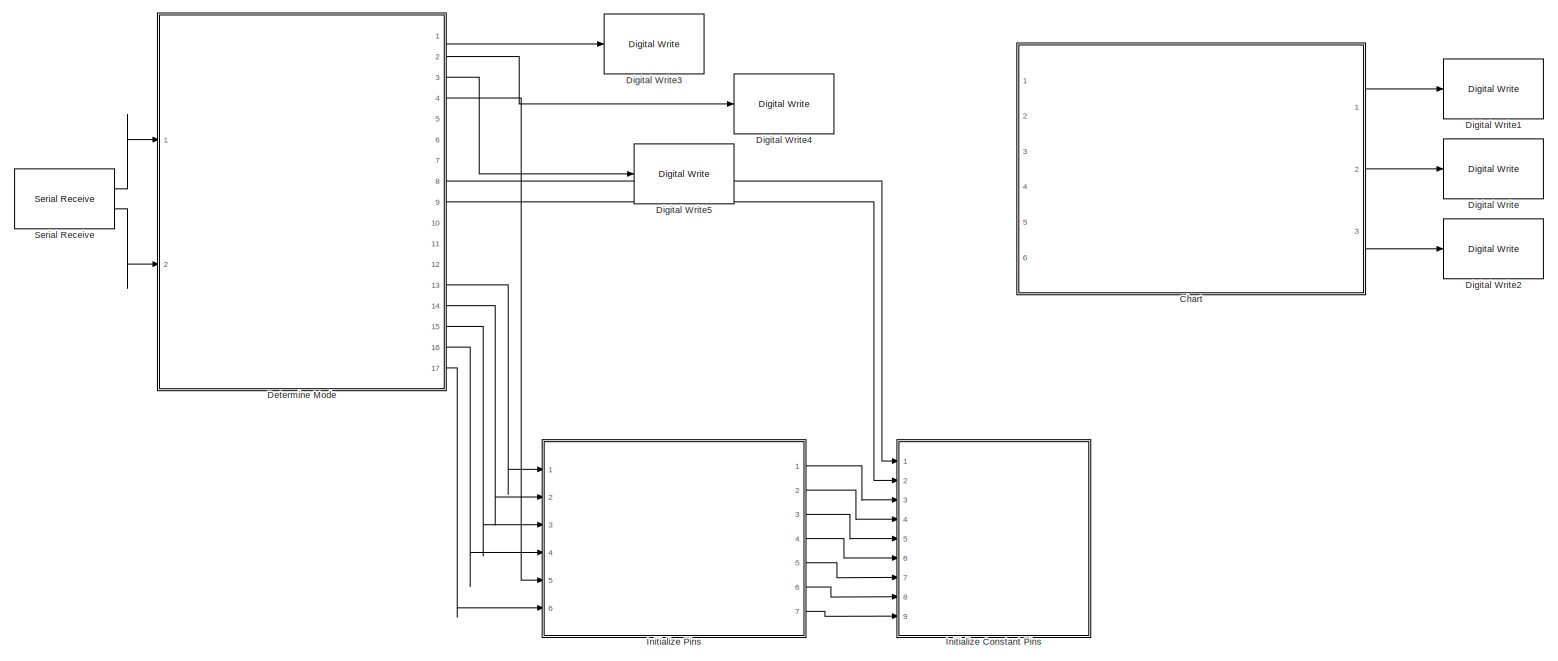
[diagram: root canvas - part 1/1, most of the canvas]
MODEL slx_1539811f4e7c
KIND model
CONFIG AbsTol = auto
CONFIG EnableMultiTasking = on
CONFIG FixedStep = 1e-3
CONFIG MaxStep = auto
CONFIG MinStep = auto
CONFIG RelTol = 1e-3
CONFIG SampleTimeConstraint = Unconstrained
CONFIG SolverName = FixedStepAuto
CONFIG StartTime = 0.0
CONFIG StopTime = 100.0
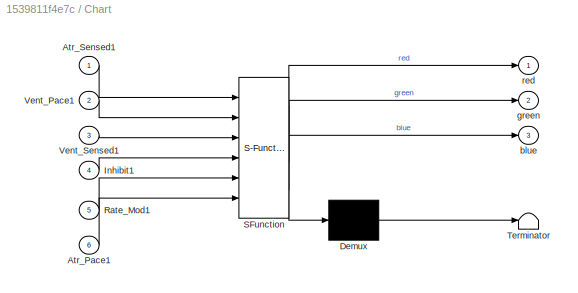
BLOCK [SubSystem] Chart
  Commented = on
  ErrorFcn = Stateflow.Translate.translate
  PermitHierarchicalResolution = ExplicitOnly
  PortSchema = {"entries":[{"content":{"sides":[{"content":{"connectorIds":["In3","In2","In1","In4","In5","In6"]},"type":"ConnectorPlacement.EquallySpacedRectSide","uuid":"0e4b22a6-a47f-4214-b9ef-749a080df669"},{"content":{"connectorIds":["Out1","Out2","Out3"],"side":"RIGHT"},"type":"ConnectorPlacement.EquallySpacedRectSide","uuid":"0adee417-9e0f-4a8f-be57-ef0b3565890b"},{"content":{"connectorIds":[],"side":"TOP...<+284ch>
  Ports = [6, 3]
  RequestExecContextInheritance = off
  SFBlockType = Chart
  TreatAsAtomicUnit = on
BLOCK [Demux] Chart/ Demux 
  Outputs = 1
  Ports = [1, 1]
BLOCK [S-Function] Chart/ SFunction 
  EnableBusSupport = on
  FunctionName = sf_sfun
  PortCounts = [6 4]
  Ports = [6, 4]
  SFcnIsStateOwnerBlock = off
  SFunctionDeploymentMode = off
  Tag = Stateflow S-Function 2
BLOCK [Terminator] Chart/ Terminator 
BLOCK [Inport] Chart/Atr_Pace1
  Port = 6
BLOCK [Inport] Chart/Atr_Sensed1
BLOCK [Inport] Chart/Inhibit1
  Port = 4
BLOCK [Inport] Chart/Rate_Mod1
  Port = 5
BLOCK [Inport] Chart/Vent_Pace1
  Port = 2
BLOCK [Inport] Chart/Vent_Sensed1
  Port = 3
BLOCK [Outport] Chart/blue
  Port = 3
BLOCK [Outport] Chart/green
  Port = 2
BLOCK [Outport] Chart/red
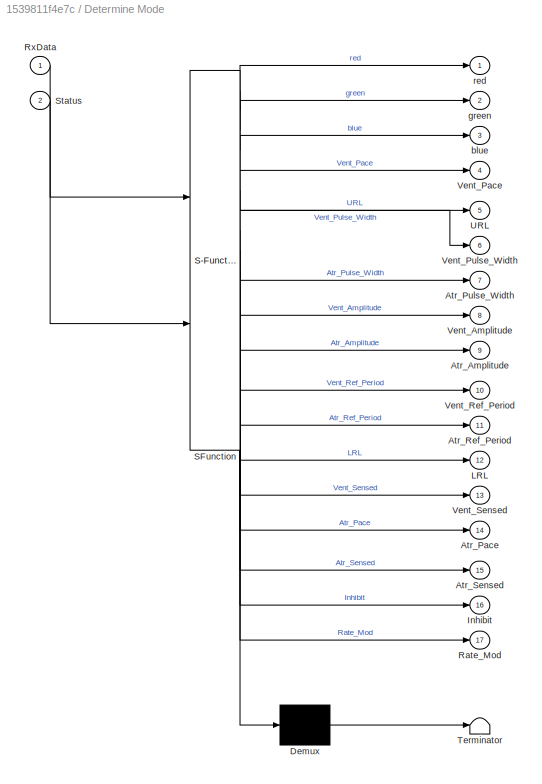
BLOCK [SubSystem] Determine Mode
  ErrorFcn = Stateflow.Translate.translate
  PermitHierarchicalResolution = ExplicitOnly
  PortSchema = {"entries":[{"content":{"sides":[{"content":{"connectorIds":["In1","In2"]},"type":"ConnectorPlacement.EquallySpacedRectSide","uuid":"d3a0267d-6aa2-456b-a992-b2b3c1e06367"},{"content":{"connectorIds":["Out1","Out2","Out3","Out12","Out5","Out6","Out7","Out10","Out11","Out8","Out9","Out4","Out13","Out14","Out15","Out16","Out17"],"side":"RIGHT"},"type":"ConnectorPlacement.EquallySpacedRectSide","uuid"...<+366ch>
  Ports = [2, 17]
  RequestExecContextInheritance = off
  SFBlockType = Chart
  TreatAsAtomicUnit = on
BLOCK [Demux] Determine Mode/ Demux 
  Outputs = 1
  Ports = [1, 1]
BLOCK [S-Function] Determine Mode/ SFunction 
  EnableBusSupport = on
  FunctionName = sf_sfun
  PortCounts = [2 18]
  Ports = [2, 18]
  SFcnIsStateOwnerBlock = off
  SFunctionDeploymentMode = off
  Tag = Stateflow S-Function 3
BLOCK [Terminator] Determine Mode/ Terminator 
BLOCK [Outport] Determine Mode/Atr_Amplitude
  Port = 9
BLOCK [Outport] Determine Mode/Atr_Pace
  Port = 14
BLOCK [Outport] Determine Mode/Atr_Pulse_Width
  Port = 7
BLOCK [Outport] Determine Mode/Atr_Ref_Period
  Port = 11
BLOCK [Outport] Determine Mode/Atr_Sensed
  Port = 15
BLOCK [Outport] Determine Mode/Inhibit
  Port = 16
BLOCK [Outport] Determine Mode/LRL
  Port = 12
BLOCK [Outport] Determine Mode/Rate_Mod
  Port = 17
BLOCK [Inport] Determine Mode/RxData
BLOCK [Inport] Determine Mode/Status
  Port = 2
BLOCK [Outport] Determine Mode/URL
  Port = 5
BLOCK [Outport] Determine Mode/Vent_Amplitude
  Port = 8
BLOCK [Outport] Determine Mode/Vent_Pace
  Port = 4
BLOCK [Outport] Determine Mode/Vent_Pulse_Width
  Port = 6
BLOCK [Outport] Determine Mode/Vent_Ref_Period
  Port = 10
BLOCK [Outport] Determine Mode/Vent_Sensed
  Port = 13
BLOCK [Outport] Determine Mode/blue
  Port = 3
BLOCK [Outport] Determine Mode/green
  Port = 2
BLOCK [Outport] Determine Mode/red
BLOCK [Reference] Digital Write  REF=frdmk64flib/Digital Write
  Commented = on
  Ports = [1]
  SourceBlock = frdmk64flib/Digital Write
  SourceProductBaseCode = EC_FRDM_K64F
  SourceType = freedomk64f.DigitalWrite
BLOCK [Reference] Digital Write1  REF=frdmk64flib/Digital Write
  Commented = on
  Ports = [1]
  SourceBlock = frdmk64flib/Digital Write
  SourceProductBaseCode = EC_FRDM_K64F
  SourceType = freedomk64f.DigitalWrite
BLOCK [Reference] Digital Write2  REF=frdmk64flib/Digital Write
  Commented = on
  Ports = [1]
  SourceBlock = frdmk64flib/Digital Write
  SourceProductBaseCode = EC_FRDM_K64F
  SourceType = freedomk64f.DigitalWrite
BLOCK [Reference] Digital Write3  REF=frdmk64flib/Digital Write
  Ports = [1]
  SourceBlock = frdmk64flib/Digital Write
  SourceProductBaseCode = EC_FRDM_K64F
  SourceType = freedomk64f.DigitalWrite
BLOCK [Reference] Digital Write4  REF=frdmk64flib/Digital Write
  Ports = [1]
  SourceBlock = frdmk64flib/Digital Write
  SourceProductBaseCode = EC_FRDM_K64F
  SourceType = freedomk64f.DigitalWrite
BLOCK [Reference] Digital Write5  REF=frdmk64flib/Digital Write
  Ports = [1]
  SourceBlock = frdmk64flib/Digital Write
  SourceProductBaseCode = EC_FRDM_K64F
  SourceType = freedomk64f.DigitalWrite
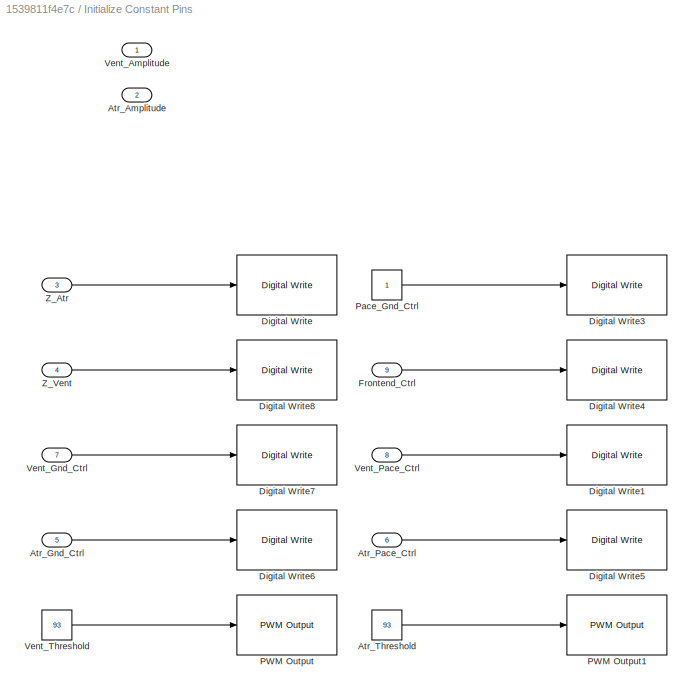
BLOCK [SubSystem] Initialize Constant Pins
  Ports = [9]
  RequestExecContextInheritance = off
BLOCK [Inport] Initialize Constant Pins/Atr_Amplitude
  Port = 2
BLOCK [Inport] Initialize Constant Pins/Atr_Gnd_Ctrl
  Port = 5
BLOCK [Inport] Initialize Constant Pins/Atr_Pace_Ctrl
  Port = 6
BLOCK [Constant] Initialize Constant Pins/Atr_Threshold
  OutDataTypeStr = int8
  Value = 93
BLOCK [Reference] Initialize Constant Pins/Digital Write  REF=frdmk64flib/Digital Write
  Ports = [1]
  SourceBlock = frdmk64flib/Digital Write
  SourceProductBaseCode = EC_FRDM_K64F
  SourceType = freedomk64f.DigitalWrite
BLOCK [Reference] Initialize Constant Pins/Digital Write1  REF=frdmk64flib/Digital Write
  Ports = [1]
  SourceBlock = frdmk64flib/Digital Write
  SourceProductBaseCode = EC_FRDM_K64F
  SourceType = freedomk64f.DigitalWrite
BLOCK [Reference] Initialize Constant Pins/Digital Write3  REF=frdmk64flib/Digital Write
  Ports = [1]
  SourceBlock = frdmk64flib/Digital Write
  SourceProductBaseCode = EC_FRDM_K64F
  SourceType = freedomk64f.DigitalWrite
BLOCK [Reference] Initialize Constant Pins/Digital Write4  REF=frdmk64flib/Digital Write
  Ports = [1]
  SourceBlock = frdmk64flib/Digital Write
  SourceProductBaseCode = EC_FRDM_K64F
  SourceType = freedomk64f.DigitalWrite
BLOCK [Reference] Initialize Constant Pins/Digital Write5  REF=frdmk64flib/Digital Write
  Ports = [1]
  SourceBlock = frdmk64flib/Digital Write
  SourceProductBaseCode = EC_FRDM_K64F
  SourceType = freedomk64f.DigitalWrite
BLOCK [Reference] Initialize Constant Pins/Digital Write6  REF=frdmk64flib/Digital Write
  Ports = [1]
  SourceBlock = frdmk64flib/Digital Write
  SourceProductBaseCode = EC_FRDM_K64F
  SourceType = freedomk64f.DigitalWrite
BLOCK [Reference] Initialize Constant Pins/Digital Write7  REF=frdmk64flib/Digital Write
  Ports = [1]
  SourceBlock = frdmk64flib/Digital Write
  SourceProductBaseCode = EC_FRDM_K64F
  SourceType = freedomk64f.DigitalWrite
BLOCK [Reference] Initialize Constant Pins/Digital Write8  REF=frdmk64flib/Digital Write
  Ports = [1]
  SourceBlock = frdmk64flib/Digital Write
  SourceProductBaseCode = EC_FRDM_K64F
  SourceType = freedomk64f.DigitalWrite
BLOCK [Inport] Initialize Constant Pins/Frontend_Ctrl
  Port = 9
BLOCK [Reference] Initialize Constant Pins/PWM Output  REF=frdmk64flib/PWM Output
  Ports = [1]
  SourceBlock = frdmk64flib/PWM Output
  SourceProductBaseCode = EC_FRDM_K64F
  SourceType = freedomk64f.PWMOutput
BLOCK [Reference] Initialize Constant Pins/PWM Output1  REF=frdmk64flib/PWM Output
  Ports = [1]
  SourceBlock = frdmk64flib/PWM Output
  SourceProductBaseCode = EC_FRDM_K64F
  SourceType = freedomk64f.PWMOutput
BLOCK [Constant] Initialize Constant Pins/Pace_Gnd_Ctrl
  SampleTime = -1
BLOCK [Inport] Initialize Constant Pins/Vent_Amplitude
BLOCK [Inport] Initialize Constant Pins/Vent_Gnd_Ctrl
  Port = 7
BLOCK [Inport] Initialize Constant Pins/Vent_Pace_Ctrl
  Port = 8
BLOCK [Constant] Initialize Constant Pins/Vent_Threshold
  OutDataTypeStr = int8
  Value = 93
BLOCK [Inport] Initialize Constant Pins/Z_Atr
  Port = 3
BLOCK [Inport] Initialize Constant Pins/Z_Vent
  Port = 4
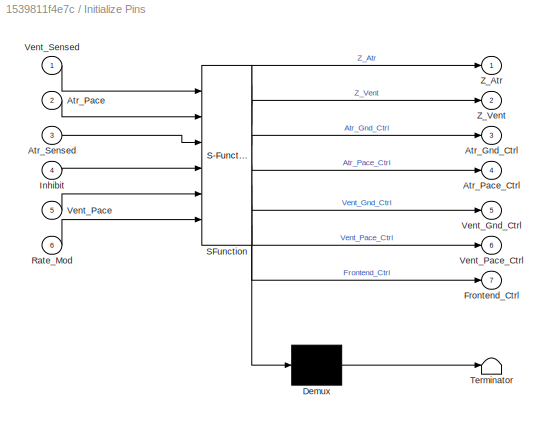
BLOCK [SubSystem] Initialize Pins
  ErrorFcn = Stateflow.Translate.translate
  PermitHierarchicalResolution = ExplicitOnly
  PortSchema = {"entries":[{"content":{"sides":[{"content":{"connectorIds":["In5","In1","In2","In3","In4","In6"]},"type":"ConnectorPlacement.EquallySpacedRectSide","uuid":"c51a1d0e-b06b-442a-95c0-1a3d5253c08f"},{"content":{"connectorIds":["Out1","Out2","Out3","Out4","Out5","Out6","Out7"],"side":"RIGHT"},"type":"ConnectorPlacement.EquallySpacedRectSide","uuid":"41317748-07b9-4449-a7f8-cbb7fdf91266"},{"content":{"...<+312ch>
  Ports = [6, 7]
  RequestExecContextInheritance = off
  SFBlockType = Chart
  TreatAsAtomicUnit = on
BLOCK [Demux] Initialize Pins/ Demux 
  Outputs = 1
  Ports = [1, 1]
BLOCK [S-Function] Initialize Pins/ SFunction 
  EnableBusSupport = on
  FunctionName = sf_sfun
  PortCounts = [6 8]
  Ports = [6, 8]
  SFcnIsStateOwnerBlock = off
  SFunctionDeploymentMode = off
  Tag = Stateflow S-Function 1
BLOCK [Terminator] Initialize Pins/ Terminator 
BLOCK [Outport] Initialize Pins/Atr_Gnd_Ctrl
  Port = 3
BLOCK [Inport] Initialize Pins/Atr_Pace
  Port = 2
BLOCK [Outport] Initialize Pins/Atr_Pace_Ctrl
  Port = 4
BLOCK [Inport] Initialize Pins/Atr_Sensed
  Port = 3
BLOCK [Outport] Initialize Pins/Frontend_Ctrl
  Port = 7
BLOCK [Inport] Initialize Pins/Inhibit
  Port = 4
BLOCK [Inport] Initialize Pins/Rate_Mod
  Port = 6
BLOCK [Outport] Initialize Pins/Vent_Gnd_Ctrl
  Port = 5
BLOCK [Inport] Initialize Pins/Vent_Pace
  Port = 5
BLOCK [Outport] Initialize Pins/Vent_Pace_Ctrl
  Port = 6
BLOCK [Inport] Initialize Pins/Vent_Sensed
BLOCK [Outport] Initialize Pins/Z_Atr
BLOCK [Outport] Initialize Pins/Z_Vent
  Port = 2
BLOCK [Reference] Serial Receive  REF=frdmk64flib/Serial Receive
  Ports = [0, 2]
  SourceBlock = frdmk64flib/Serial Receive
  SourceProductBaseCode = EC_FRDM_K64F
  SourceType = freedomk64f.SCIRead
LINE Chart:1 -> Digital Write1:1
LINE Chart:2 -> Digital Write:1
LINE Chart:3 -> Digital Write2:1
LINE Determine Mode:1 -> Digital Write3:1
LINE Determine Mode:13 -> Initialize Pins:1
LINE Determine Mode:14 -> Initialize Pins:2
LINE Determine Mode:15 -> Initialize Pins:3
LINE Determine Mode:16 -> Initialize Pins:4
LINE Determine Mode:17 -> Initialize Pins:6
LINE Determine Mode:2 -> Digital Write4:1
LINE Determine Mode:3 -> Digital Write5:1
LINE Determine Mode:4 -> Initialize Pins:5
LINE Determine Mode:8 -> Initialize Constant Pins:1
LINE Determine Mode:9 -> Initialize Constant Pins:2
LINE Initialize Constant Pins/Atr_Gnd_Ctrl:1 -> Initialize Constant Pins/Digital Write6:1
LINE Initialize Constant Pins/Atr_Pace_Ctrl:1 -> Initialize Constant Pins/Digital Write5:1
LINE Initialize Constant Pins/Atr_Threshold:1 -> Initialize Constant Pins/PWM Output1:1
LINE Initialize Constant Pins/Frontend_Ctrl:1 -> Initialize Constant Pins/Digital Write4:1
LINE Initialize Constant Pins/Pace_Gnd_Ctrl:1 -> Initialize Constant Pins/Digital Write3:1
LINE Initialize Constant Pins/Vent_Gnd_Ctrl:1 -> Initialize Constant Pins/Digital Write7:1
LINE Initialize Constant Pins/Vent_Pace_Ctrl:1 -> Initialize Constant Pins/Digital Write1:1
LINE Initialize Constant Pins/Vent_Threshold:1 -> Initialize Constant Pins/PWM Output:1
LINE Initialize Constant Pins/Z_Atr:1 -> Initialize Constant Pins/Digital Write:1
LINE Initialize Constant Pins/Z_Vent:1 -> Initialize Constant Pins/Digital Write8:1
LINE Initialize Pins:1 -> Initialize Constant Pins:3
LINE Initialize Pins:2 -> Initialize Constant Pins:4
LINE Initialize Pins:3 -> Initialize Constant Pins:5
LINE Initialize Pins:4 -> Initialize Constant Pins:6
LINE Initialize Pins:5 -> Initialize Constant Pins:7
LINE Initialize Pins:6 -> Initialize Constant Pins:8
LINE Initialize Pins:7 -> Initialize Constant Pins:9
LINE Serial Receive:1 -> Determine Mode:1
LINE Serial Receive:2 -> Determine Mode:2
CHART Initialize Pins states=4 transitions=5
  STATE_LABEL 'Pacing_Ventricle\nentry:\nAtr_Gnd_Ctrl = false;\nAtr_Pace_Ctrl = false;\n'
  STATE_LABEL 'Sensing\nentry:\nFrontend_Ctrl = true;'
  STATE_LABEL 'Initialize_Constant_Pins\nentry:\nZ_Atr = false;\nZ_Vent = false;'
  STATE_LABEL 'Pacing_Atrium\nentry:\nVent_Gnd_Ctrl = false;\nVent_Pace_Ctrl = false;\n'
CHART Chart states=9 transitions=15
  STATE_LABEL 'VOO\nentry:\nred = true;\n'
  STATE_LABEL 'Initialize_All_Variables\nentry:\nVent_Pace = Vent_Pace1;\nVent_Sensed = Vent_Sensed1;\nAtr_Pace = Atr_Pace1;\nAtr_Sensed = Atr_Sensed1;\nInhibit = Inhibit1;\nRate_Mod = Rate_Mod1;\n'
  STATE_LABEL 'VVI\nentry:\nblue = true;\nafter(500,msec)\nblue = false;'
  STATE_LABEL 'VOOR\nentry:\nred = true;\nafter(500,msec)\nred = false;\nafter(500,msec)\nred = true;\nafter(500,msec)\nred = false;'
  STATE_LABEL 'VVIR\nentry:\nblue = true;\nafter(500,msec)\nblue = false;\nafter(500,msec)\nblue = true;\nafter(500,msec)\nblue = false;'
  STATE_LABEL 'AOO\nentry:\ngreen = true;\nafter(500,msec)\ngreen = false;'
  STATE_LABEL 'AOOR\nentry:\ngreen = true;\nafter(500,msec)\ngreen = false;\nafter(500,msec)\ngreen = true;\nafter(500,msec)\ngreen = false;'
  STATE_LABEL 'AAI\nentry:\ngreen = true;\nafter(500,msec)\ngreen = false;\nafter(500,msec)\nred = true;\nafter(500,msec)\nred = false'
  STATE_LABEL 'AAIR\nentry:\ngreen = true;\nafter(500,msec)\ngreen = false;\nafter(500,msec)\nblue = true;\nafter(500,msec)\nblue = false;'
CHART Determine Mode states=15 transitions=30
  STATE_LABEL 'Sense_Ventrical\nentry:\nVent_Sensed = 1;\nInhibit = 1;\n'
  STATE_LABEL 'Pace_Ventricle\nentry:\nVent_Pace = 1;'
  STATE_LABEL 'No_Sensing'
  STATE_LABEL 'Input_Parameters\nentry:\nLRL = RxData(5);\nURL = RxData(6);\nVent_Pulse_Width = RxData(7);\nAtr_Pulse_Width = RxData(8);\nVent_Amplitude = RxData(9);\nAtr_Amplitude = RxData(10);\nVent_Ref_Period = RxData(11);\nAtr_Ref_Period = RxData(12);\n'
  STATE_LABEL 'Initialize_Variables\nentry:\nVent_Pace = 0;\nAtr_Pace = 0;\nVent_Sensed = 0;\nAtr_Sensed = 0;\nInhibit = 0;\nRate_Mod = 0;\nred = false;\ngreen = false;\nblue = false;'
  STATE_LABEL 'Rate_Modulation\nentry:\nRate_Mod = 1;'
  STATE_LABEL 'Pace_Atrium\nentry:\nAtr_Pace = 1;'
  STATE_LABEL 'Sense_Atrium\nentry:\nAtr_Sensed = 1;\nInhibit = 1;\n'
  STATE_LABEL 'Wait_For_Data\n'
  STATE_LABEL 'Dual_Pacing\nentry:\nVent_Pace =1;\nAtr_Pace = 1;'
  STATE_LABEL 'Dual_Sensing\nentry:\nVent_Sensed =1;\nAtr_Sensed = 1;'
  STATE_LABEL 'green\nentry:\ngreen = true;'
  STATE_LABEL 'red\nentry:\nred = true;'
  STATE_LABEL 'blue\nentry:\nblue = true;'
  STATE_LABEL 'all_off\nentry:\nred = false;\ngreen = false;\nblue = false;'
CHART  states=0 transitions=0
CHART  states=0 transitions=0
CHART  states=0 transitions=0
